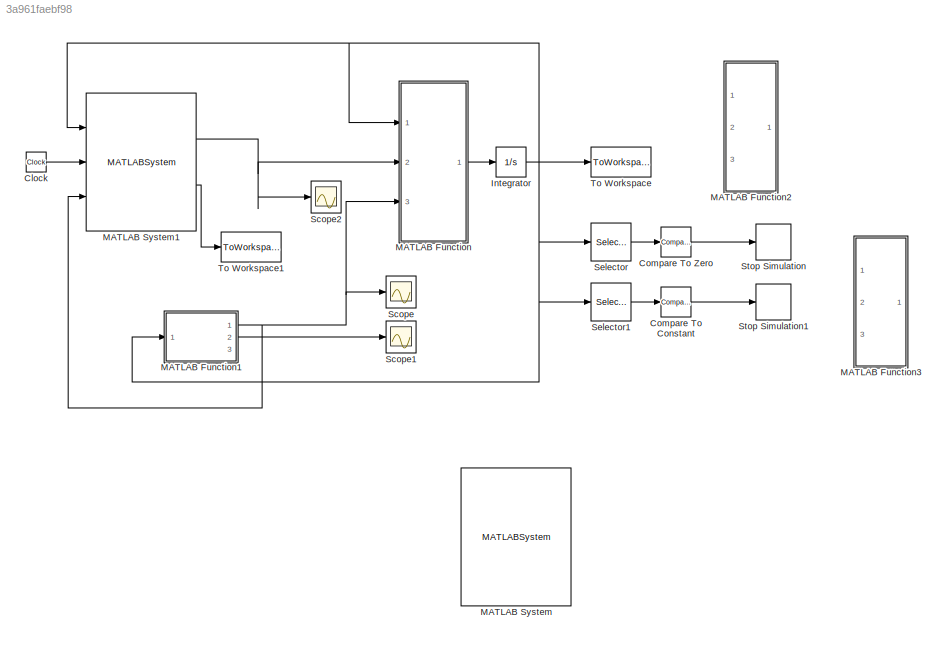
MODEL slx_3a961faebf98
KIND model
CONFIG AbsTol = auto
CONFIG EnableMultiTasking = off
CONFIG FixedStep = auto
CONFIG InitFcn = SimInit\nCustomInit
CONFIG MaxStep = 0.001
CONFIG MinStep = auto
CONFIG RelTol = 1e-3
CONFIG SampleTimeConstraint = Unconstrained
CONFIG Solver = ode45
CONFIG SolverName = ode45
CONFIG StartTime = 0.0
CONFIG StopTime = 10.0
BLOCK [Clock] Clock
BLOCK [Reference] Compare To Constant  REF=simulink/Logic and Bit
Operations/Compare
To Constant
  Ports = [1, 1]
  SourceBlock = simulink/Logic and Bit\nOperations/Compare\nTo Constant
  SourceProductBaseCode = SL
  SourceProductName = Simulink
  SourceType = Compare To Constant
BLOCK [Reference] Compare To Zero  REF=simulink/Logic and Bit
Operations/Compare
To Zero
  Ports = [1, 1]
  SourceBlock = simulink/Logic and Bit\nOperations/Compare\nTo Zero
  SourceProductBaseCode = SL
  SourceProductName = Simulink
  SourceType = Compare To Zero
BLOCK [Integrator] Integrator
  InitialCondition = IC
  Ports = [1, 1]
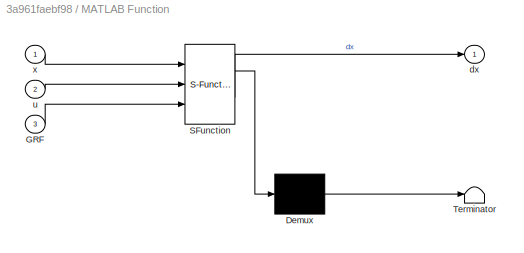
BLOCK [SubSystem] MATLAB Function
  ErrorFcn = Stateflow.Translate.translate
  PermitHierarchicalResolution = ExplicitOnly
  Ports = [3, 1]
  RequestExecContextInheritance = off
  SFBlockType = MATLAB Function
  TreatAsAtomicUnit = on
  Variant = off
BLOCK [Demux] MATLAB Function/ Demux 
  Outputs = 1
  Ports = [1, 1]
BLOCK [S-Function] MATLAB Function/ SFunction 
  EnableBusSupport = on
  FunctionName = sf_sfun
  PortCounts = [3 2]
  Ports = [3, 2]
  SFcnIsStateOwnerBlock = off
  SFunctionDeploymentMode = off
  Tag = Stateflow S-Function FLWSim 2
BLOCK [Terminator] MATLAB Function/ Terminator 
BLOCK [Inport] MATLAB Function/GRF
  IconDisplay = Port number
  Port = 3
BLOCK [Outport] MATLAB Function/dx
  IconDisplay = Port number
BLOCK [Inport] MATLAB Function/u
  IconDisplay = Port number
  Port = 2
BLOCK [Inport] MATLAB Function/x
  IconDisplay = Port number
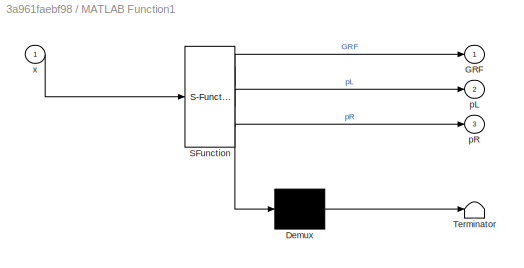
BLOCK [SubSystem] MATLAB Function1
  ErrorFcn = Stateflow.Translate.translate
  PermitHierarchicalResolution = ExplicitOnly
  Ports = [1, 3]
  RequestExecContextInheritance = off
  SFBlockType = MATLAB Function
  TreatAsAtomicUnit = on
  Variant = off
BLOCK [Demux] MATLAB Function1/ Demux 
  Outputs = 1
  Ports = [1, 1]
BLOCK [S-Function] MATLAB Function1/ SFunction 
  EnableBusSupport = on
  FunctionName = sf_sfun
  PortCounts = [1 4]
  Ports = [1, 4]
  SFcnIsStateOwnerBlock = off
  SFunctionDeploymentMode = off
  Tag = Stateflow S-Function FLWSim 1
BLOCK [Terminator] MATLAB Function1/ Terminator 
BLOCK [Outport] MATLAB Function1/GRF
  IconDisplay = Port number
BLOCK [Outport] MATLAB Function1/pL
  IconDisplay = Port number
  Port = 2
BLOCK [Outport] MATLAB Function1/pR
  IconDisplay = Port number
  Port = 3
BLOCK [Inport] MATLAB Function1/x
  IconDisplay = Port number
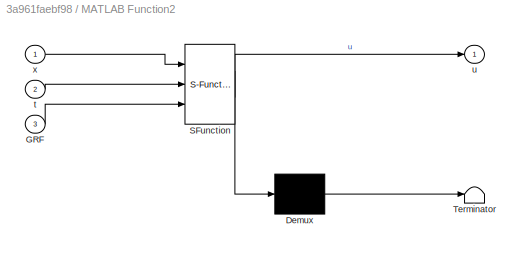
BLOCK [SubSystem] MATLAB Function2
  Commented = on
  ErrorFcn = Stateflow.Translate.translate
  PermitHierarchicalResolution = ExplicitOnly
  Ports = [3, 1]
  RequestExecContextInheritance = off
  SFBlockType = MATLAB Function
  TreatAsAtomicUnit = on
  Variant = off
BLOCK [Demux] MATLAB Function2/ Demux 
  Outputs = 1
  Ports = [1, 1]
BLOCK [S-Function] MATLAB Function2/ SFunction 
  EnableBusSupport = on
  FunctionName = sf_sfun
  PortCounts = [3 2]
  Ports = [3, 2]
  SFcnIsStateOwnerBlock = off
  SFunctionDeploymentMode = off
  Tag = Stateflow S-Function FLWSim 3
BLOCK [Terminator] MATLAB Function2/ Terminator 
BLOCK [Inport] MATLAB Function2/GRF
  IconDisplay = Port number
  Port = 3
BLOCK [Inport] MATLAB Function2/t
  IconDisplay = Port number
  Port = 2
BLOCK [Outport] MATLAB Function2/u
  IconDisplay = Port number
BLOCK [Inport] MATLAB Function2/x
  IconDisplay = Port number
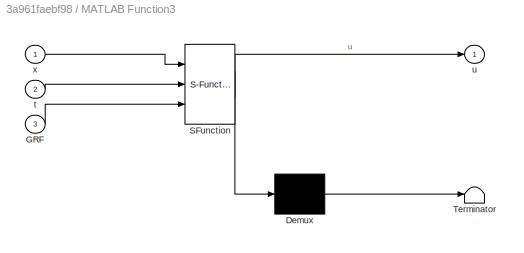
BLOCK [SubSystem] MATLAB Function3
  Commented = on
  ErrorFcn = Stateflow.Translate.translate
  PermitHierarchicalResolution = ExplicitOnly
  Ports = [3, 1]
  RequestExecContextInheritance = off
  SFBlockType = MATLAB Function
  TreatAsAtomicUnit = on
  Variant = off
BLOCK [Demux] MATLAB Function3/ Demux 
  Outputs = 1
  Ports = [1, 1]
BLOCK [S-Function] MATLAB Function3/ SFunction 
  EnableBusSupport = on
  FunctionName = sf_sfun
  PortCounts = [3 2]
  Ports = [3, 2]
  SFcnIsStateOwnerBlock = off
  SFunctionDeploymentMode = off
  Tag = Stateflow S-Function FLWSim 4
BLOCK [Terminator] MATLAB Function3/ Terminator 
BLOCK [Inport] MATLAB Function3/GRF
  IconDisplay = Port number
  Port = 3
BLOCK [Inport] MATLAB Function3/t
  IconDisplay = Port number
  Port = 2
BLOCK [Outport] MATLAB Function3/u
  IconDisplay = Port number
BLOCK [Inport] MATLAB Function3/x
  IconDisplay = Port number
BLOCK [MATLABSystem] MATLAB System
  Commented = on
  MaskDisplay = disp('FLW_Controller_1');\nport_label('input',1,'x');\nport_label('input',2,'t');\nport_label('input',3,'GRF');\nport_label('output',1,'u');\nport_label('output',2,'Data');
  MaskType = FLW_Controller_1
  Ports = [3, 2]
  SimulateUsing = Code generation
  System = FLW_Controller_1
BLOCK [MATLABSystem] MATLAB System1
  MaskDisplay = disp('FLW_Controller_2');\nport_label('input',1,'x');\nport_label('input',2,'t');\nport_label('input',3,'GRF');\nport_label('output',1,'u');\nport_label('output',2,'Data');
  MaskType = FLW_Controller_2
  Ports = [3, 2]
  SimulateUsing = Code generation
  System = FLW_Controller_2
BLOCK [Scope] Scope
  NumInputPorts = 1
  Ports = [1]
  ScopeSpecificationString = Simulink.scopes.TimeScopeBlockCfg('CurrentConfiguration', extmgr.ConfigurationSet(extmgr.Configuration('Core','General UI',true),extmgr.Configuration('Core','Source UI',true),extmgr.Configuration('Sources','WiredSimulink',true),extmgr.Configuration('Visuals','Time Domain',true,'SerializedDisplays',{struct('MinYLimReal','-3527.8342','MaxYLimReal','2836.7382','YLabelReal','','MinYLimMag','  0.00000'...<+1607ch>
BLOCK [Scope] Scope1
  NumInputPorts = 1
  Ports = [1]
  ScopeSpecificationString = Simulink.scopes.TimeScopeBlockCfg('CurrentConfiguration', extmgr.ConfigurationSet(extmgr.Configuration('Core','General UI',true),extmgr.Configuration('Core','Source UI',true),extmgr.Configuration('Sources','WiredSimulink',true,'DataLoggingVariableName','ScopeData1'),extmgr.Configuration('Visuals','Time Domain',true,'SerializedDisplays',{struct('MinYLimReal','-126.86849','MaxYLimReal','50.32414','Y...<+1484ch>
BLOCK [Scope] Scope2
  NumInputPorts = 1
  Ports = [1]
  ScopeSpecificationString = Simulink.scopes.TimeScopeBlockCfg('CurrentConfiguration', extmgr.ConfigurationSet(extmgr.Configuration('Core','General UI',true),extmgr.Configuration('Core','Source UI',true),extmgr.Configuration('Sources','WiredSimulink',true,'DataLoggingVariableName','ScopeData2'),extmgr.Configuration('Visuals','Time Domain',true,'SerializedDisplays',{struct('MinYLimReal','-2453.87139','MaxYLimReal','1143.79313'...<+1531ch>
BLOCK [Selector] Selector
  IndexOptions = Index vector (dialog)
  Indices = [2]
  InputPortWidth = 14
  OutputSizes = 1
  Ports = [1, 1]
BLOCK [Selector] Selector1
  IndexOptions = Index vector (dialog)
  Indices = [8]
  InputPortWidth = 14
  OutputSizes = 1
  Ports = [1, 1]
BLOCK [Stop] Stop Simulation
BLOCK [Stop] Stop Simulation1
BLOCK [ToWorkspace] To Workspace
  FixptAsFi = on
  MaxDataPoints = inf
  Ports = [1]
  SampleTime = -1
  Save2DSignal = 3-D array (concatenate along third dimension)
  VariableName = X_states
BLOCK [ToWorkspace] To Workspace1
  FixptAsFi = on
  MaxDataPoints = inf
  Ports = [1]
  SampleTime = -1
  Save2DSignal = 3-D array (concatenate along third dimension)
  SaveFormat = Timeseries
  VariableName = Data
LINE Clock:1 -> MATLAB System1:2
LINE Compare To Constant:1 -> Stop Simulation1:1
LINE Compare To Zero:1 -> Stop Simulation:1
NET Integrator:1 -> MATLAB Function1:1, MATLAB Function:1, MATLAB System1:1, Selector1:1, Selector:1, To Workspace:1
NET MATLAB Function1:1 -> MATLAB Function:3, MATLAB System1:3, Scope:1
LINE MATLAB Function1:2 -> Scope1:1
LINE MATLAB Function:1 -> Integrator:1
NET MATLAB System1:1 -> MATLAB Function:2, Scope2:1
LINE MATLAB System1:2 -> To Workspace1:1
LINE Selector1:1 -> Compare To Constant:1
LINE Selector:1 -> Compare To Zero:1
note: NET lines group one-source signal fan-out (src -> all destinations, sorted); 1:1 wires keep LINE
CHART MATLAB Function1 states=1 transitions=1
  STATE_LABEL 'eML_blk_kernel()'
  STATE_LABEL 'SCRIPT:\nfunction [GRF,pL,pR] = fcn(x)\nstiffness_v = 60000;\ndamping_v = 1000;\ndamping_h = 10000;\nFC = 10; % Friction Cone\nq = x(1:7);\ndq = x(8:14);\nGRF= zeros(6,1);\n\npL = p_LeftToe(q);\npR = p_RightToe(q);\nvL = Jp_LeftToe(q)*dq;\nvR = Jp_RightToe(q)*dq;\n\n\n\nif pL(3)<0\n    GRF_Lx = -damping_h*vL(1);\n    GRF_Lz = -stiffness_v*pL(3)-damping_v*vL(3);\n    GRF(1) = GRF_Lx;\n    GRF(3) = GRF_Lz;\nend\n\nif pR(3)...<+289ch>'
CHART MATLAB Function states=1 transitions=1
  STATE_LABEL 'eML_blk_kernel()'
  STATE_LABEL "SCRIPT:\nfunction dx = ContinuousModel(x,u,GRF)\ndx = zeros(size(x));\nq = x(1:7);\ndq = x(8:end);\n\nM = InertiaMatrix(q);\nC = CoriolisTerm(q,dq);\nG = GravityVector(q);\nB = [zeros(3,4);eye(4)];\n\nJgL = Jp_LeftToe(q);\nJgR = Jp_RightToe(q);\nJg = [JgL;JgR];\n\nddq = M^-1*(-C-G+B*u+Jg'*GRF);\n\ndx = [dq;ddq];\n\nend\n"
CHART MATLAB Function2 states=1 transitions=1
  STATE_LABEL 'eML_blk_kernel()'
  STATE_LABEL 'SCRIPT:\nfunction u = walk_in_place(x,t,GRF)\nq = x(1:7);\ndq = x(8:14);\n% Let the output be torso angle, hip height and x,z of swing feet.\nT = 0.4; % walking period\nKd = 50;\nKp = 400;\ns = rem(t,T)/T;\nds = 1/T;\n\nif mod(fix(t/T),2)\n    stanceLeg = 1;\nelse\n    stanceLeg = -1;\nend\n    \n\n\nhr= [-pi/6;0.6;0;(s-0.5)^2+0.35];\ndhr = [0;0;0;2*(s-0.5)*ds];\nddhr = [0;0;0;2*ds^2];\n\np_LT = p_LeftToe(q);\np_RT = p_R...<+1551ch>'
CHART MATLAB Function3 states=1 transitions=1
  STATE_LABEL 'eML_blk_kernel()'
  STATE_LABEL 'SCRIPT:\nfunction u = controller(x,t,GRF)\nq = x(1:7);\ndq = x(8:14);\n% Let the output be torso angle, com height and delta x,delta z of swing\n% feet and com. delta = p_com - p_swfeet.\nT = 0.4; % walking period\nKd = 50;\nKp = 400;\ns = rem(t,T)/T;\nds = 1/T;\n\nif mod(fix(t/T),2)==1 && GRF(6)>100\n    stanceLeg = 1;\nelseif mod(fix(t/T),2)==1 && GRF(6)<=100\n    stanceLeg = -1;\nelseif mod(fix(t/T),2) == 0 &&...<+1693ch>'
